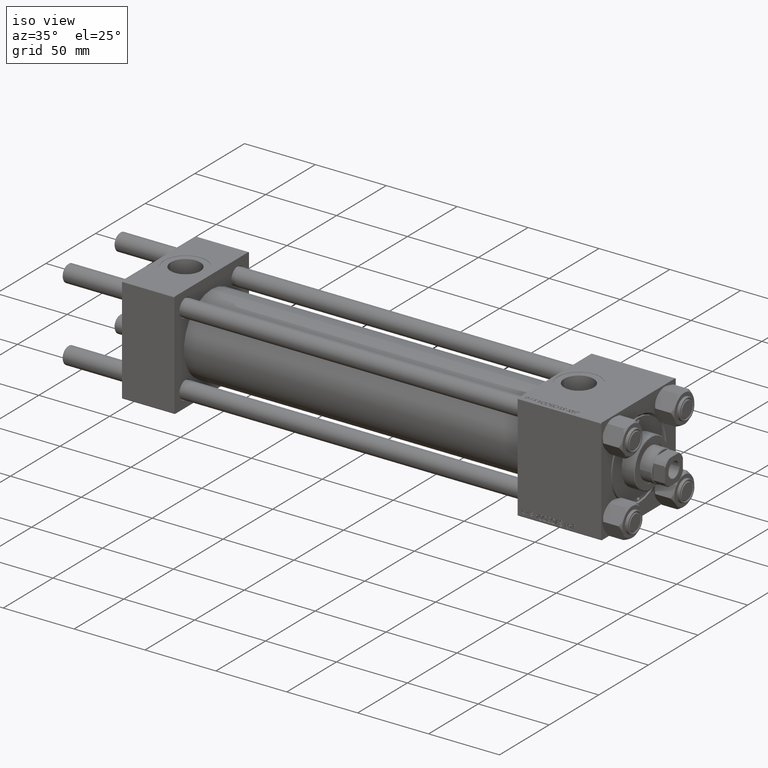
[diagram: clean part render]
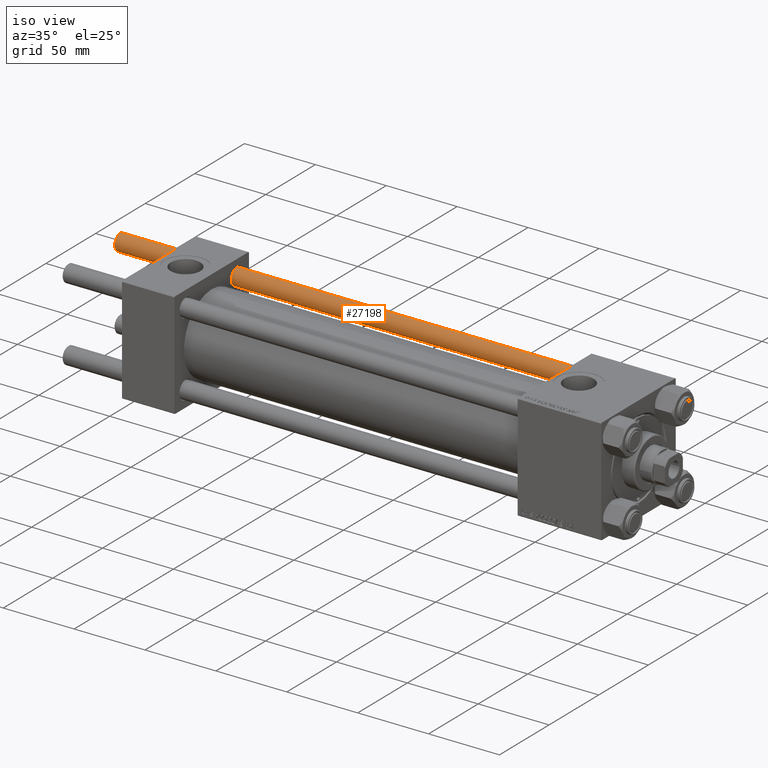
[diagram: same view with one face highlighted and labeled with its STEP entity id]
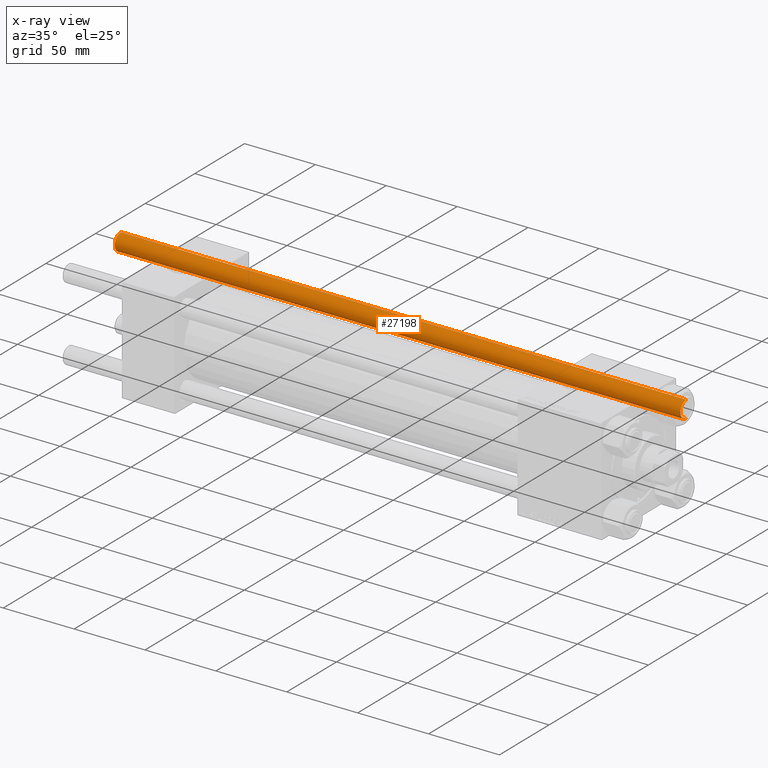
[diagram: x-ray of the same camera — body ghosted, the highlighted face saturated]
A machine part, iso view. The second image highlights one B-rep face of the part: STEP entity #27198.
The next image is the same camera in x-ray: the body ghosted, the highlighted face saturated — about 0% of this face is hidden behind the body in this view.
In plain terms, the highlighted cylindrical surface (edge-blend (fillet) strip) has radius 6 mm, axis along (-1, -0, -0).
Its self-contained STEP definition (entity closure, byte-faithful):
#160 = EDGE_CURVE ( 'NONE', #39756, #28341, #42559, .T. ) ;
#279 = ORIENTED_EDGE ( 'NONE', *, *, #38554, .F. ) ;
#453 = ORIENTED_EDGE ( 'NONE', *, *, #12256, .T. ) ;
#519 = DIRECTION ( 'NONE',  ( 1.000000000000000000, 0.000000000000000000, 0.000000000000000000 ) ) ;
#1603 = CARTESIAN_POINT ( 'NONE',  ( 6.000000000000000888, 7.347880794884120722E-16, 0.5000000000000004441 ) ) ;
#2649 = ORIENTED_EDGE ( 'NONE', *, *, #43809, .T. ) ;
#3161 = DIRECTION ( 'NONE',  ( -1.000000000000000000, 0.000000000000000000, 0.000000000000000000 ) ) ;
#4323 = DIRECTION ( 'NONE',  ( -0.000000000000000000, -0.000000000000000000, 1.000000000000000000 ) ) ;
#9235 = EDGE_LOOP ( 'NONE', ( #279, #453, #2649, #21387 ) ) ;
#9689 = CARTESIAN_POINT ( 'NONE',  ( 6.000000000000000888, 7.347880794884120722E-16, 400.0000000000000000 ) ) ;
#11656 = DIRECTION ( 'NONE',  ( 1.000000000000000000, 0.000000000000000000, 0.000000000000000000 ) ) ;
#12147 = DIRECTION ( 'NONE',  ( 0.000000000000000000, 0.000000000000000000, -1.000000000000000000 ) ) ;
#12256 = EDGE_CURVE ( 'NONE', #14703, #25350, #21094, .T. ) ;
#14535 = CYLINDRICAL_SURFACE ( 'NONE', #25091, 6.000000000000000888 ) ;
#14703 = VERTEX_POINT ( 'NONE', #17051 ) ;
#17051 = CARTESIAN_POINT ( 'NONE',  ( 6.000000000000000888, 7.347880794884120722E-16, 399.5000000000000000 ) ) ;
#17855 = AXIS2_PLACEMENT_3D ( 'NONE', #31583, #12147, #519 ) ;
#18215 = VECTOR ( 'NONE', #25092, 1000.000000000000000 ) ;
#19978 = CARTESIAN_POINT ( 'NONE',  ( 0.000000000000000000, 0.000000000000000000, 0.5000000000000004441 ) ) ;
#21094 = CIRCLE ( 'NONE', #17855, 6.000000000000000888 ) ;
#21387 = ORIENTED_EDGE ( 'NONE', *, *, #160, .T. ) ;
#21844 = CARTESIAN_POINT ( 'NONE',  ( -6.000000000000000888, 0.000000000000000000, 399.5000000000000000 ) ) ;
#22485 = LINE ( 'NONE', #42141, #38493 ) ;
#25091 = AXIS2_PLACEMENT_3D ( 'NONE', #34712, #45322, #3161 ) ;
#25092 = DIRECTION ( 'NONE',  ( -0.000000000000000000, -0.000000000000000000, -1.000000000000000000 ) ) ;
#25276 = CARTESIAN_POINT ( 'NONE',  ( -6.000000000000000888, 0.000000000000000000, 0.5000000000000004441 ) ) ;
#25350 = VERTEX_POINT ( 'NONE', #21844 ) ;
#27198 = ADVANCED_FACE ( 'NONE', ( #41772 ), #14535, .T. ) ;
#28341 = VERTEX_POINT ( 'NONE', #1603 ) ;
#31583 = CARTESIAN_POINT ( 'NONE',  ( 0.000000000000000000, 0.000000000000000000, 399.5000000000000000 ) ) ;
#34712 = CARTESIAN_POINT ( 'NONE',  ( 0.000000000000000000, 0.000000000000000000, 400.0000000000000000 ) ) ;
#38493 = VECTOR ( 'NONE', #41406, 1000.000000000000000 ) ;
#38554 = EDGE_CURVE ( 'NONE', #14703, #28341, #44260, .T. ) ;
#39756 = VERTEX_POINT ( 'NONE', #25276 ) ;
#41406 = DIRECTION ( 'NONE',  ( -0.000000000000000000, -0.000000000000000000, -1.000000000000000000 ) ) ;
#41772 = FACE_OUTER_BOUND ( 'NONE', #9235, .T. ) ;
#42141 = CARTESIAN_POINT ( 'NONE',  ( -6.000000000000000888, 0.000000000000000000, 400.0000000000000000 ) ) ;
#42559 = CIRCLE ( 'NONE', #44139, 6.000000000000000888 ) ;
#43809 = EDGE_CURVE ( 'NONE', #25350, #39756, #22485, .T. ) ;
#44139 = AXIS2_PLACEMENT_3D ( 'NONE', #19978, #4323, #11656 ) ;
#44260 = LINE ( 'NONE', #9689, #18215 ) ;
#45322 = DIRECTION ( 'NONE',  ( -0.000000000000000000, -0.000000000000000000, -1.000000000000000000 ) ) ;